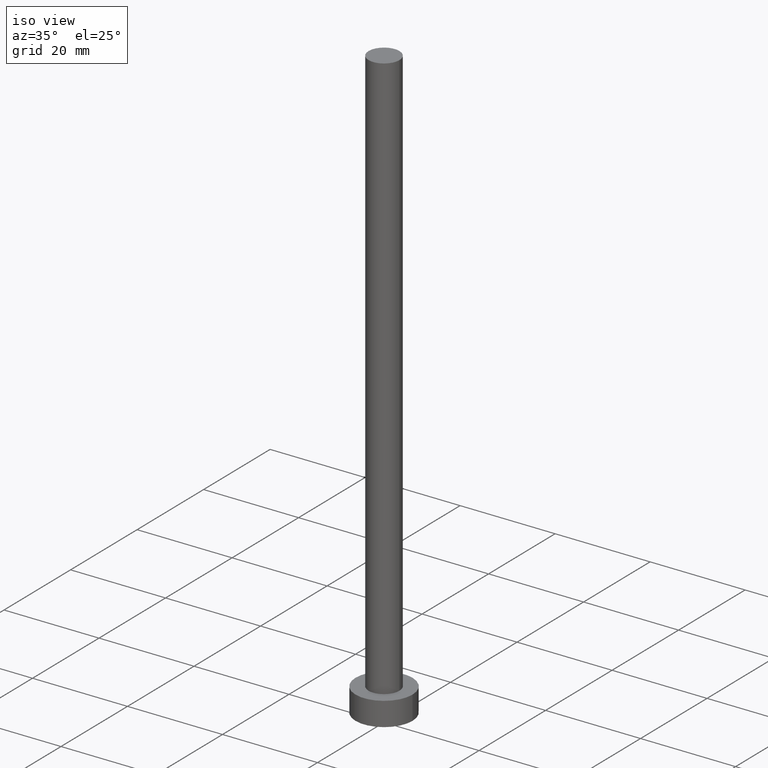
[diagram: clean part render]
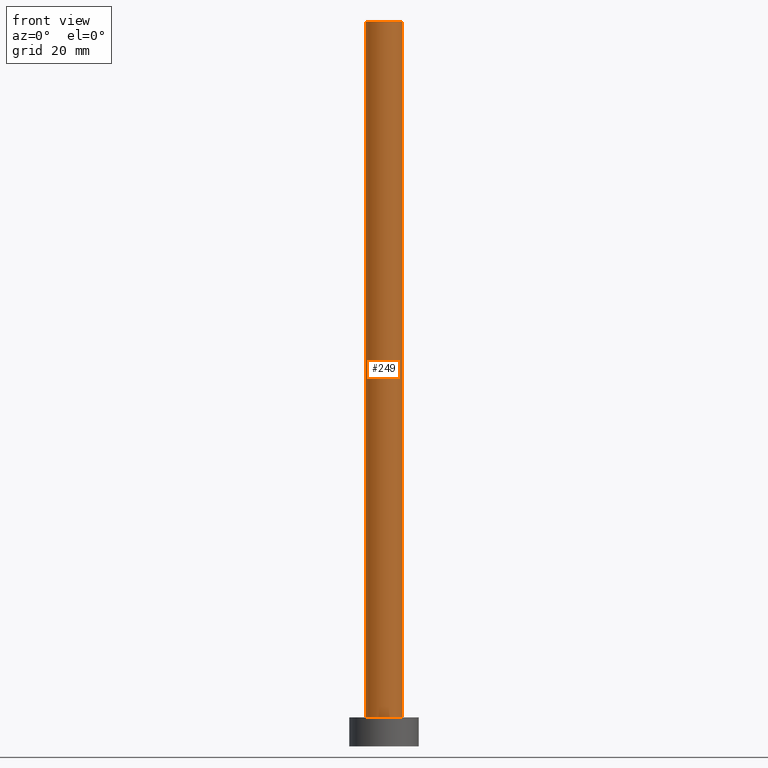
[diagram: tour spotlight — one face highlighted and labeled with its STEP entity id]
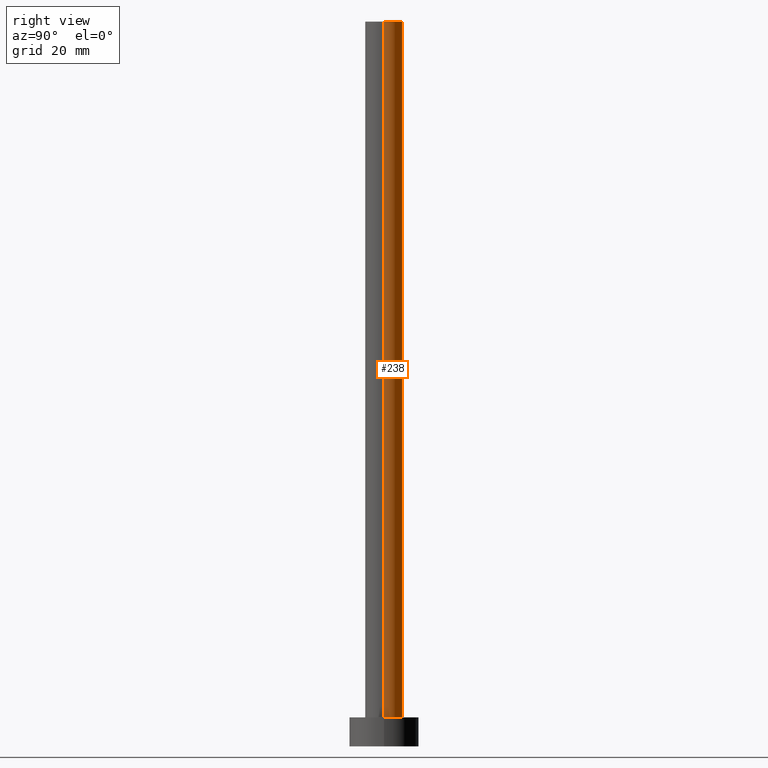
[diagram: tour spotlight — one face highlighted and labeled with its STEP entity id]
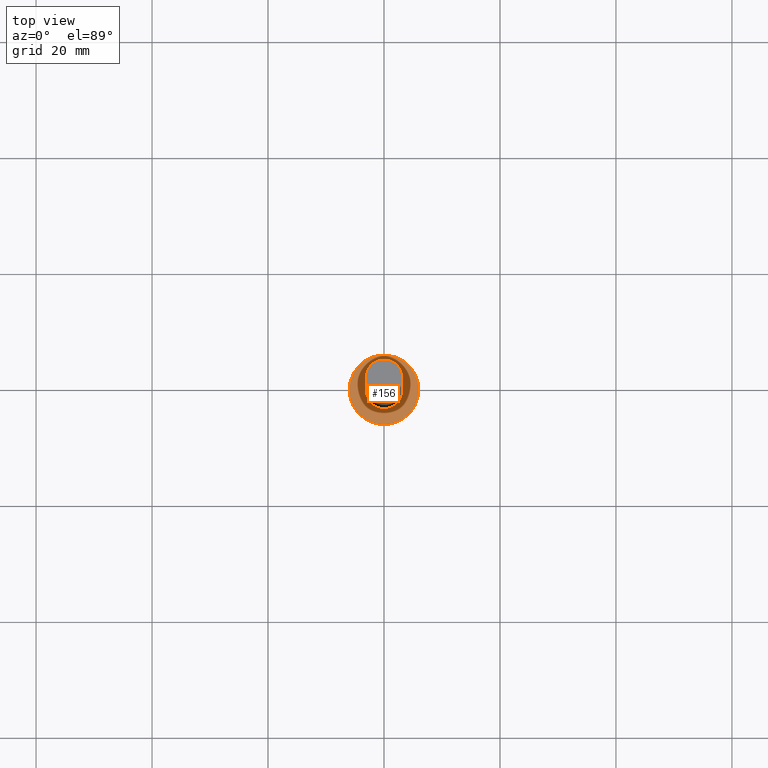
[diagram: tour spotlight — one face highlighted and labeled with its STEP entity id]
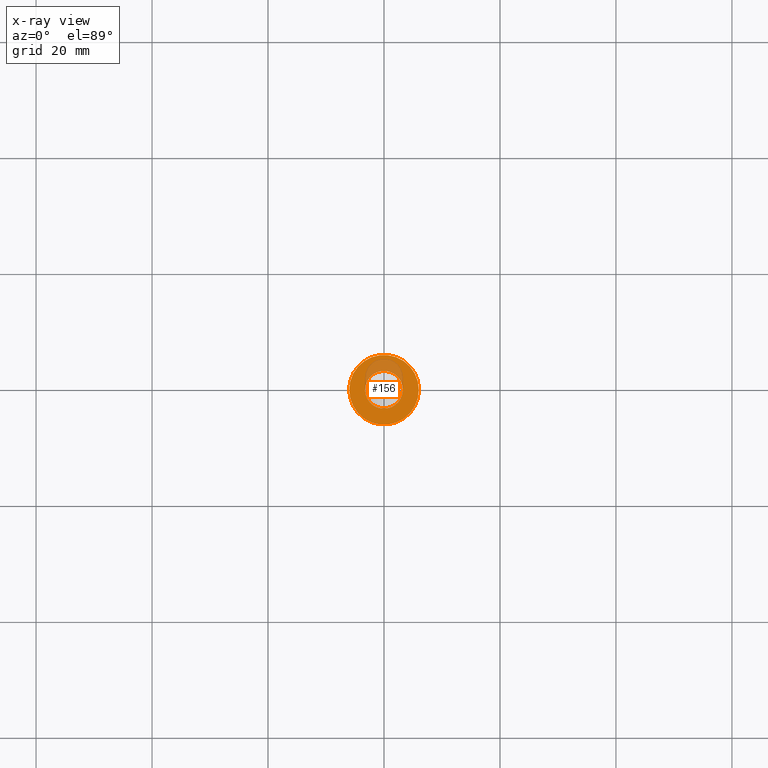
[diagram: x-ray of the same camera — body ghosted, this tour face saturated]
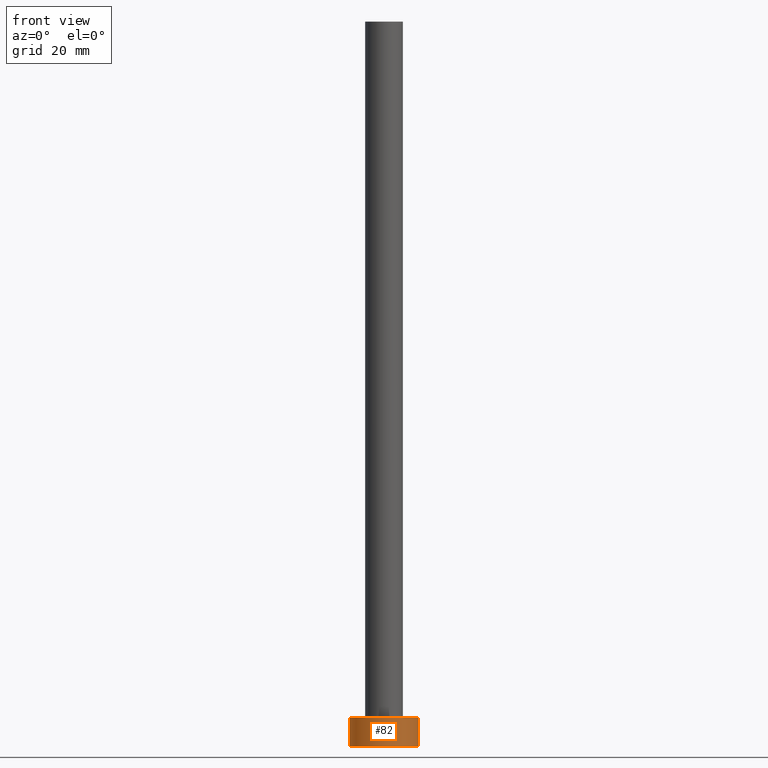
[diagram: tour spotlight — one face highlighted and labeled with its STEP entity id]
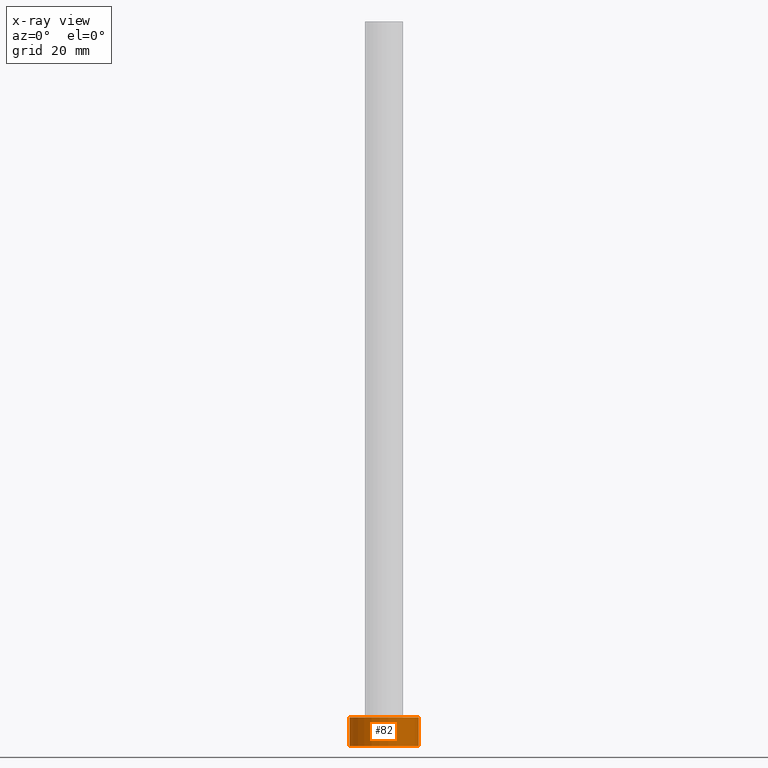
[diagram: x-ray of the same camera — body ghosted, this tour face saturated]
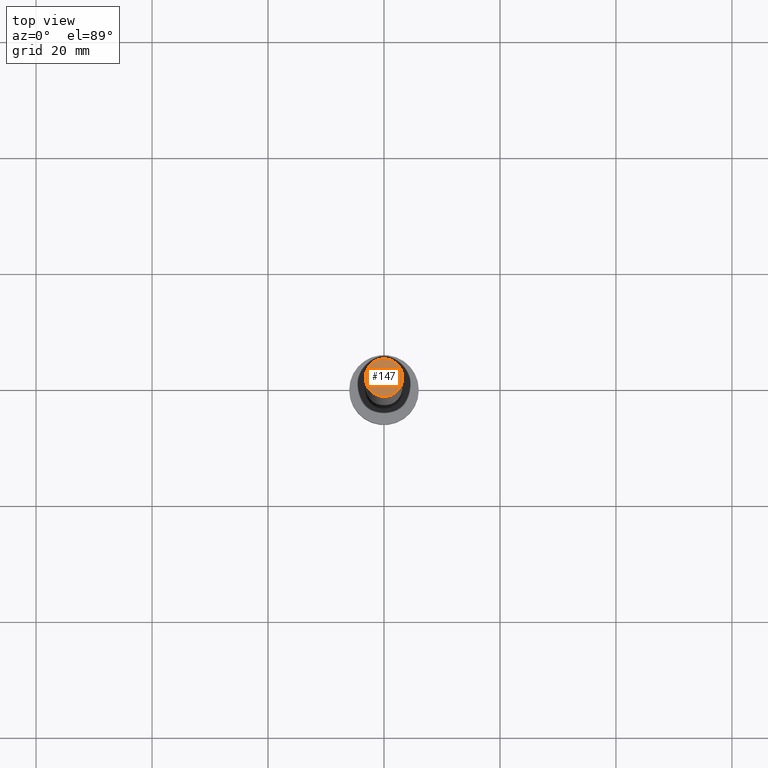
[diagram: tour spotlight — one face highlighted and labeled with its STEP entity id]
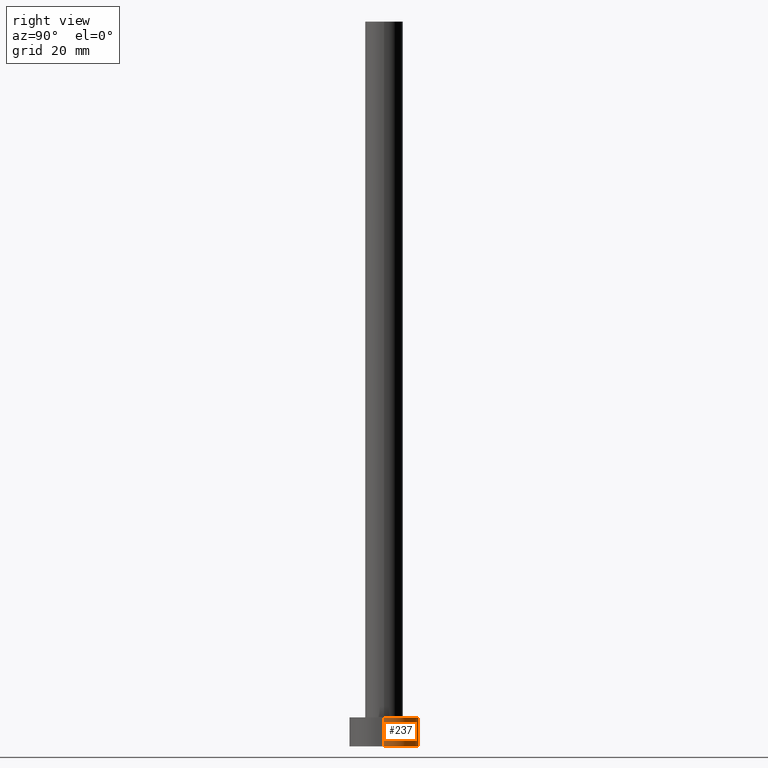
[diagram: tour spotlight — one face highlighted and labeled with its STEP entity id]
A machine part: a face-by-face anatomy tour. The part has 7 B-rep faces; the first image is the clean iso view, then the 6 largest visible faces are spotlighted one at a time (largest first), each with its STEP entity span.

Face 1 — front view, entity #249. In plain terms, the highlighted cylindrical surface (edge-blend (fillet) strip) has radius 3.25 mm, axis along (-0, -0, -1).
Definition (entity closure, byte-faithful):
#11 = CARTESIAN_POINT ( 'NONE',  ( 3.250000000000000444, 3.980102097228898231E-16, 125.0000000000000000 ) ) ;
#24 = ORIENTED_EDGE ( 'NONE', *, *, #112, .F. ) ;
#28 = ORIENTED_EDGE ( 'NONE', *, *, #226, .T. ) ;
#29 = DIRECTION ( 'NONE',  ( -0.000000000000000000, -0.000000000000000000, -1.000000000000000000 ) ) ;
#31 = EDGE_LOOP ( 'NONE', ( #123, #24, #241, #28 ) ) ;
#35 = DIRECTION ( 'NONE',  ( -0.000000000000000000, -0.000000000000000000, -1.000000000000000000 ) ) ;
#36 = DIRECTION ( 'NONE',  ( 1.000000000000000000, 0.000000000000000000, 0.000000000000000000 ) ) ;
#37 = DIRECTION ( 'NONE',  ( -1.000000000000000000, 0.000000000000000000, 0.000000000000000000 ) ) ;
#46 = AXIS2_PLACEMENT_3D ( 'NONE', #72, #154, #36 ) ;
#48 = VERTEX_POINT ( 'NONE', #180 ) ;
#61 = VERTEX_POINT ( 'NONE', #11 ) ;
#62 = EDGE_CURVE ( 'NONE', #61, #78, #162, .T. ) ;
#70 = CIRCLE ( 'NONE', #46, 3.250000000000000444 ) ;
#72 = CARTESIAN_POINT ( 'NONE',  ( 0.000000000000000000, 0.000000000000000000, 5.000000000000000000 ) ) ;
#78 = VERTEX_POINT ( 'NONE', #207 ) ;
#93 = DIRECTION ( 'NONE',  ( -0.000000000000000000, -0.000000000000000000, -1.000000000000000000 ) ) ;
#96 = CIRCLE ( 'NONE', #121, 3.250000000000000444 ) ;
#112 = EDGE_CURVE ( 'NONE', #182, #61, #96, .T. ) ;
#121 = AXIS2_PLACEMENT_3D ( 'NONE', #186, #184, #170 ) ;
#123 = ORIENTED_EDGE ( 'NONE', *, *, #62, .F. ) ;
#130 = LINE ( 'NONE', #209, #216 ) ;
#134 = FACE_OUTER_BOUND ( 'NONE', #31, .T. ) ;
#154 = DIRECTION ( 'NONE',  ( 0.000000000000000000, 0.000000000000000000, 1.000000000000000000 ) ) ;
#162 = LINE ( 'NONE', #202, #208 ) ;
#170 = DIRECTION ( 'NONE',  ( 1.000000000000000000, 0.000000000000000000, 0.000000000000000000 ) ) ;
#180 = CARTESIAN_POINT ( 'NONE',  ( -3.250000000000000444, 0.000000000000000000, 5.000000000000000000 ) ) ;
#182 = VERTEX_POINT ( 'NONE', #231 ) ;
#184 = DIRECTION ( 'NONE',  ( 0.000000000000000000, 0.000000000000000000, 1.000000000000000000 ) ) ;
#186 = CARTESIAN_POINT ( 'NONE',  ( 0.000000000000000000, 0.000000000000000000, 125.0000000000000000 ) ) ;
#190 = EDGE_CURVE ( 'NONE', #182, #48, #130, .T. ) ;
#193 = CYLINDRICAL_SURFACE ( 'NONE', #223, 3.250000000000000444 ) ;
#202 = CARTESIAN_POINT ( 'NONE',  ( 3.250000000000000444, 3.980102097228898231E-16, 125.0000000000000000 ) ) ;
#207 = CARTESIAN_POINT ( 'NONE',  ( 3.250000000000000444, 3.980102097228898231E-16, 5.000000000000000000 ) ) ;
#208 = VECTOR ( 'NONE', #29, 1000.000000000000000 ) ;
#209 = CARTESIAN_POINT ( 'NONE',  ( -3.250000000000000444, 0.000000000000000000, 125.0000000000000000 ) ) ;
#216 = VECTOR ( 'NONE', #35, 1000.000000000000000 ) ;
#223 = AXIS2_PLACEMENT_3D ( 'NONE', #254, #93, #37 ) ;
#226 = EDGE_CURVE ( 'NONE', #48, #78, #70, .T. ) ;
#231 = CARTESIAN_POINT ( 'NONE',  ( -3.250000000000000444, 0.000000000000000000, 125.0000000000000000 ) ) ;
#241 = ORIENTED_EDGE ( 'NONE', *, *, #190, .T. ) ;
#249 = ADVANCED_FACE ( 'NONE', ( #134 ), #193, .T. ) ;
#254 = CARTESIAN_POINT ( 'NONE',  ( 0.000000000000000000, 0.000000000000000000, 125.0000000000000000 ) ) ;

Face 2 — right view, entity #238. In plain terms, the highlighted cylindrical surface (edge-blend (fillet) strip) has radius 3.25 mm, axis along (-0, -0, -1).
Definition (entity closure, byte-faithful):
#10 = CIRCLE ( 'NONE', #173, 3.250000000000000444 ) ;
#11 = CARTESIAN_POINT ( 'NONE',  ( 3.250000000000000444, 3.980102097228898231E-16, 125.0000000000000000 ) ) ;
#29 = DIRECTION ( 'NONE',  ( -0.000000000000000000, -0.000000000000000000, -1.000000000000000000 ) ) ;
#35 = DIRECTION ( 'NONE',  ( -0.000000000000000000, -0.000000000000000000, -1.000000000000000000 ) ) ;
#39 = AXIS2_PLACEMENT_3D ( 'NONE', #115, #210, #255 ) ;
#45 = ORIENTED_EDGE ( 'NONE', *, *, #199, .F. ) ;
#48 = VERTEX_POINT ( 'NONE', #180 ) ;
#54 = FACE_OUTER_BOUND ( 'NONE', #203, .T. ) ;
#61 = VERTEX_POINT ( 'NONE', #11 ) ;
#62 = EDGE_CURVE ( 'NONE', #61, #78, #162, .T. ) ;
#68 = EDGE_CURVE ( 'NONE', #78, #48, #10, .T. ) ;
#77 = ORIENTED_EDGE ( 'NONE', *, *, #190, .F. ) ;
#78 = VERTEX_POINT ( 'NONE', #207 ) ;
#100 = ORIENTED_EDGE ( 'NONE', *, *, #68, .T. ) ;
#115 = CARTESIAN_POINT ( 'NONE',  ( 0.000000000000000000, 0.000000000000000000, 125.0000000000000000 ) ) ;
#116 = CARTESIAN_POINT ( 'NONE',  ( 0.000000000000000000, 0.000000000000000000, 125.0000000000000000 ) ) ;
#130 = LINE ( 'NONE', #209, #216 ) ;
#131 = CYLINDRICAL_SURFACE ( 'NONE', #218, 3.250000000000000444 ) ;
#151 = DIRECTION ( 'NONE',  ( 1.000000000000000000, 0.000000000000000000, 0.000000000000000000 ) ) ;
#152 = CIRCLE ( 'NONE', #39, 3.250000000000000444 ) ;
#155 = DIRECTION ( 'NONE',  ( -1.000000000000000000, 0.000000000000000000, 0.000000000000000000 ) ) ;
#162 = LINE ( 'NONE', #202, #208 ) ;
#167 = CARTESIAN_POINT ( 'NONE',  ( 0.000000000000000000, 0.000000000000000000, 5.000000000000000000 ) ) ;
#173 = AXIS2_PLACEMENT_3D ( 'NONE', #167, #187, #151 ) ;
#180 = CARTESIAN_POINT ( 'NONE',  ( -3.250000000000000444, 0.000000000000000000, 5.000000000000000000 ) ) ;
#182 = VERTEX_POINT ( 'NONE', #231 ) ;
#187 = DIRECTION ( 'NONE',  ( 0.000000000000000000, 0.000000000000000000, 1.000000000000000000 ) ) ;
#190 = EDGE_CURVE ( 'NONE', #182, #48, #130, .T. ) ;
#199 = EDGE_CURVE ( 'NONE', #61, #182, #152, .T. ) ;
#200 = ORIENTED_EDGE ( 'NONE', *, *, #62, .T. ) ;
#202 = CARTESIAN_POINT ( 'NONE',  ( 3.250000000000000444, 3.980102097228898231E-16, 125.0000000000000000 ) ) ;
#203 = EDGE_LOOP ( 'NONE', ( #45, #200, #100, #77 ) ) ;
#207 = CARTESIAN_POINT ( 'NONE',  ( 3.250000000000000444, 3.980102097228898231E-16, 5.000000000000000000 ) ) ;
#208 = VECTOR ( 'NONE', #29, 1000.000000000000000 ) ;
#209 = CARTESIAN_POINT ( 'NONE',  ( -3.250000000000000444, 0.000000000000000000, 125.0000000000000000 ) ) ;
#210 = DIRECTION ( 'NONE',  ( 0.000000000000000000, 0.000000000000000000, 1.000000000000000000 ) ) ;
#216 = VECTOR ( 'NONE', #35, 1000.000000000000000 ) ;
#218 = AXIS2_PLACEMENT_3D ( 'NONE', #116, #234, #155 ) ;
#231 = CARTESIAN_POINT ( 'NONE',  ( -3.250000000000000444, 0.000000000000000000, 125.0000000000000000 ) ) ;
#234 = DIRECTION ( 'NONE',  ( -0.000000000000000000, -0.000000000000000000, -1.000000000000000000 ) ) ;
#238 = ADVANCED_FACE ( 'NONE', ( #54 ), #131, .T. ) ;
#255 = DIRECTION ( 'NONE',  ( 1.000000000000000000, 0.000000000000000000, 0.000000000000000000 ) ) ;

Face 3 — top view, entity #156. An x-ray twin of the same camera follows (body ghosted, this face saturated) — the face is partly hidden behind the body. In plain terms, the highlighted planar face has unit normal (0, 0, 1).
Definition (entity closure, byte-faithful):
#8 = DIRECTION ( 'NONE',  ( 1.000000000000000000, 0.000000000000000000, 0.000000000000000000 ) ) ;
#10 = CIRCLE ( 'NONE', #173, 3.250000000000000444 ) ;
#12 = ORIENTED_EDGE ( 'NONE', *, *, #20, .T. ) ;
#20 = EDGE_CURVE ( 'NONE', #224, #64, #139, .T. ) ;
#36 = DIRECTION ( 'NONE',  ( 1.000000000000000000, 0.000000000000000000, 0.000000000000000000 ) ) ;
#46 = AXIS2_PLACEMENT_3D ( 'NONE', #72, #154, #36 ) ;
#48 = VERTEX_POINT ( 'NONE', #180 ) ;
#52 = DIRECTION ( 'NONE',  ( 0.000000000000000000, 0.000000000000000000, 1.000000000000000000 ) ) ;
#64 = VERTEX_POINT ( 'NONE', #88 ) ;
#66 = CIRCLE ( 'NONE', #245, 6.000000000000000888 ) ;
#68 = EDGE_CURVE ( 'NONE', #78, #48, #10, .T. ) ;
#69 = AXIS2_PLACEMENT_3D ( 'NONE', #150, #52, #128 ) ;
#70 = CIRCLE ( 'NONE', #46, 3.250000000000000444 ) ;
#72 = CARTESIAN_POINT ( 'NONE',  ( 0.000000000000000000, 0.000000000000000000, 5.000000000000000000 ) ) ;
#78 = VERTEX_POINT ( 'NONE', #207 ) ;
#83 = ORIENTED_EDGE ( 'NONE', *, *, #68, .F. ) ;
#88 = CARTESIAN_POINT ( 'NONE',  ( -6.000000000000000888, 0.000000000000000000, 5.000000000000000000 ) ) ;
#106 = ORIENTED_EDGE ( 'NONE', *, *, #196, .T. ) ;
#108 = CARTESIAN_POINT ( 'NONE',  ( 0.000000000000000000, 0.000000000000000000, 5.000000000000000000 ) ) ;
#127 = DIRECTION ( 'NONE',  ( 1.000000000000000000, 0.000000000000000000, 0.000000000000000000 ) ) ;
#128 = DIRECTION ( 'NONE',  ( 1.000000000000000000, 0.000000000000000000, -0.000000000000000000 ) ) ;
#137 = EDGE_LOOP ( 'NONE', ( #163, #83 ) ) ;
#139 = CIRCLE ( 'NONE', #194, 6.000000000000000888 ) ;
#149 = DIRECTION ( 'NONE',  ( 0.000000000000000000, 0.000000000000000000, 1.000000000000000000 ) ) ;
#150 = CARTESIAN_POINT ( 'NONE',  ( 0.000000000000000000, 0.000000000000000000, 5.000000000000000000 ) ) ;
#151 = DIRECTION ( 'NONE',  ( 1.000000000000000000, 0.000000000000000000, 0.000000000000000000 ) ) ;
#154 = DIRECTION ( 'NONE',  ( 0.000000000000000000, 0.000000000000000000, 1.000000000000000000 ) ) ;
#156 = ADVANCED_FACE ( 'NONE', ( #247, #230 ), #252, .T. ) ;
#163 = ORIENTED_EDGE ( 'NONE', *, *, #226, .F. ) ;
#167 = CARTESIAN_POINT ( 'NONE',  ( 0.000000000000000000, 0.000000000000000000, 5.000000000000000000 ) ) ;
#173 = AXIS2_PLACEMENT_3D ( 'NONE', #167, #187, #151 ) ;
#180 = CARTESIAN_POINT ( 'NONE',  ( -3.250000000000000444, 0.000000000000000000, 5.000000000000000000 ) ) ;
#187 = DIRECTION ( 'NONE',  ( 0.000000000000000000, 0.000000000000000000, 1.000000000000000000 ) ) ;
#191 = CARTESIAN_POINT ( 'NONE',  ( 6.000000000000000888, 7.347880794884120722E-16, 5.000000000000000000 ) ) ;
#194 = AXIS2_PLACEMENT_3D ( 'NONE', #220, #227, #8 ) ;
#196 = EDGE_CURVE ( 'NONE', #64, #224, #66, .T. ) ;
#207 = CARTESIAN_POINT ( 'NONE',  ( 3.250000000000000444, 3.980102097228898231E-16, 5.000000000000000000 ) ) ;
#220 = CARTESIAN_POINT ( 'NONE',  ( 0.000000000000000000, 0.000000000000000000, 5.000000000000000000 ) ) ;
#222 = EDGE_LOOP ( 'NONE', ( #106, #12 ) ) ;
#224 = VERTEX_POINT ( 'NONE', #191 ) ;
#226 = EDGE_CURVE ( 'NONE', #48, #78, #70, .T. ) ;
#227 = DIRECTION ( 'NONE',  ( 0.000000000000000000, 0.000000000000000000, 1.000000000000000000 ) ) ;
#230 = FACE_OUTER_BOUND ( 'NONE', #222, .T. ) ;
#245 = AXIS2_PLACEMENT_3D ( 'NONE', #108, #149, #127 ) ;
#247 = FACE_BOUND ( 'NONE', #137, .T. ) ;
#252 = PLANE ( 'NONE',  #69 ) ;

Face 4 — front view, entity #82. An x-ray twin of the same camera follows (body ghosted, this face saturated) — the face is partly hidden behind the body. In plain terms, the highlighted cylindrical surface (edge-blend (fillet) strip) has radius 6 mm, axis along (-0, -0, -1).
Definition (entity closure, byte-faithful):
#2 = VECTOR ( 'NONE', #177, 1000.000000000000000 ) ;
#3 = EDGE_CURVE ( 'NONE', #64, #122, #103, .T. ) ;
#18 = DIRECTION ( 'NONE',  ( -1.000000000000000000, 0.000000000000000000, 0.000000000000000000 ) ) ;
#32 = DIRECTION ( 'NONE',  ( 0.000000000000000000, 0.000000000000000000, 1.000000000000000000 ) ) ;
#59 = CARTESIAN_POINT ( 'NONE',  ( -6.000000000000000888, 0.000000000000000000, 5.000000000000000000 ) ) ;
#63 = EDGE_LOOP ( 'NONE', ( #225, #239, #198, #85 ) ) ;
#64 = VERTEX_POINT ( 'NONE', #88 ) ;
#65 = DIRECTION ( 'NONE',  ( -0.000000000000000000, -0.000000000000000000, -1.000000000000000000 ) ) ;
#66 = CIRCLE ( 'NONE', #245, 6.000000000000000888 ) ;
#71 = CARTESIAN_POINT ( 'NONE',  ( 6.000000000000000888, 7.347880794884120722E-16, 0.000000000000000000 ) ) ;
#73 = AXIS2_PLACEMENT_3D ( 'NONE', #113, #32, #92 ) ;
#82 = ADVANCED_FACE ( 'NONE', ( #205 ), #107, .T. ) ;
#85 = ORIENTED_EDGE ( 'NONE', *, *, #192, .T. ) ;
#86 = DIRECTION ( 'NONE',  ( -0.000000000000000000, -0.000000000000000000, -1.000000000000000000 ) ) ;
#88 = CARTESIAN_POINT ( 'NONE',  ( -6.000000000000000888, 0.000000000000000000, 5.000000000000000000 ) ) ;
#90 = CARTESIAN_POINT ( 'NONE',  ( -6.000000000000000888, 0.000000000000000000, 0.000000000000000000 ) ) ;
#92 = DIRECTION ( 'NONE',  ( 1.000000000000000000, 0.000000000000000000, 0.000000000000000000 ) ) ;
#103 = LINE ( 'NONE', #59, #2 ) ;
#107 = CYLINDRICAL_SURFACE ( 'NONE', #135, 6.000000000000000888 ) ;
#108 = CARTESIAN_POINT ( 'NONE',  ( 0.000000000000000000, 0.000000000000000000, 5.000000000000000000 ) ) ;
#113 = CARTESIAN_POINT ( 'NONE',  ( 0.000000000000000000, 0.000000000000000000, 0.000000000000000000 ) ) ;
#122 = VERTEX_POINT ( 'NONE', #90 ) ;
#127 = DIRECTION ( 'NONE',  ( 1.000000000000000000, 0.000000000000000000, 0.000000000000000000 ) ) ;
#135 = AXIS2_PLACEMENT_3D ( 'NONE', #171, #65, #18 ) ;
#149 = DIRECTION ( 'NONE',  ( 0.000000000000000000, 0.000000000000000000, 1.000000000000000000 ) ) ;
#153 = EDGE_CURVE ( 'NONE', #224, #159, #248, .T. ) ;
#159 = VERTEX_POINT ( 'NONE', #71 ) ;
#164 = VECTOR ( 'NONE', #86, 1000.000000000000000 ) ;
#171 = CARTESIAN_POINT ( 'NONE',  ( 0.000000000000000000, 0.000000000000000000, 5.000000000000000000 ) ) ;
#172 = CARTESIAN_POINT ( 'NONE',  ( 6.000000000000000888, 7.347880794884120722E-16, 5.000000000000000000 ) ) ;
#177 = DIRECTION ( 'NONE',  ( -0.000000000000000000, -0.000000000000000000, -1.000000000000000000 ) ) ;
#183 = CIRCLE ( 'NONE', #73, 6.000000000000000888 ) ;
#191 = CARTESIAN_POINT ( 'NONE',  ( 6.000000000000000888, 7.347880794884120722E-16, 5.000000000000000000 ) ) ;
#192 = EDGE_CURVE ( 'NONE', #122, #159, #183, .T. ) ;
#196 = EDGE_CURVE ( 'NONE', #64, #224, #66, .T. ) ;
#198 = ORIENTED_EDGE ( 'NONE', *, *, #3, .T. ) ;
#205 = FACE_OUTER_BOUND ( 'NONE', #63, .T. ) ;
#224 = VERTEX_POINT ( 'NONE', #191 ) ;
#225 = ORIENTED_EDGE ( 'NONE', *, *, #153, .F. ) ;
#239 = ORIENTED_EDGE ( 'NONE', *, *, #196, .F. ) ;
#245 = AXIS2_PLACEMENT_3D ( 'NONE', #108, #149, #127 ) ;
#248 = LINE ( 'NONE', #172, #164 ) ;

Face 5 — top view, entity #147. In plain terms, the highlighted planar face has unit normal (0, 0, 1).
Definition (entity closure, byte-faithful):
#5 = EDGE_LOOP ( 'NONE', ( #145, #125 ) ) ;
#11 = CARTESIAN_POINT ( 'NONE',  ( 3.250000000000000444, 3.980102097228898231E-16, 125.0000000000000000 ) ) ;
#14 = FACE_OUTER_BOUND ( 'NONE', #5, .T. ) ;
#39 = AXIS2_PLACEMENT_3D ( 'NONE', #115, #210, #255 ) ;
#51 = CARTESIAN_POINT ( 'NONE',  ( 0.000000000000000000, 0.000000000000000000, 125.0000000000000000 ) ) ;
#61 = VERTEX_POINT ( 'NONE', #11 ) ;
#67 = PLANE ( 'NONE',  #244 ) ;
#96 = CIRCLE ( 'NONE', #121, 3.250000000000000444 ) ;
#112 = EDGE_CURVE ( 'NONE', #182, #61, #96, .T. ) ;
#115 = CARTESIAN_POINT ( 'NONE',  ( 0.000000000000000000, 0.000000000000000000, 125.0000000000000000 ) ) ;
#121 = AXIS2_PLACEMENT_3D ( 'NONE', #186, #184, #170 ) ;
#125 = ORIENTED_EDGE ( 'NONE', *, *, #199, .T. ) ;
#145 = ORIENTED_EDGE ( 'NONE', *, *, #112, .T. ) ;
#147 = ADVANCED_FACE ( 'NONE', ( #14 ), #67, .T. ) ;
#152 = CIRCLE ( 'NONE', #39, 3.250000000000000444 ) ;
#170 = DIRECTION ( 'NONE',  ( 1.000000000000000000, 0.000000000000000000, 0.000000000000000000 ) ) ;
#182 = VERTEX_POINT ( 'NONE', #231 ) ;
#184 = DIRECTION ( 'NONE',  ( 0.000000000000000000, 0.000000000000000000, 1.000000000000000000 ) ) ;
#186 = CARTESIAN_POINT ( 'NONE',  ( 0.000000000000000000, 0.000000000000000000, 125.0000000000000000 ) ) ;
#199 = EDGE_CURVE ( 'NONE', #61, #182, #152, .T. ) ;
#204 = DIRECTION ( 'NONE',  ( 0.000000000000000000, 0.000000000000000000, 1.000000000000000000 ) ) ;
#206 = DIRECTION ( 'NONE',  ( 1.000000000000000000, 0.000000000000000000, -0.000000000000000000 ) ) ;
#210 = DIRECTION ( 'NONE',  ( 0.000000000000000000, 0.000000000000000000, 1.000000000000000000 ) ) ;
#231 = CARTESIAN_POINT ( 'NONE',  ( -3.250000000000000444, 0.000000000000000000, 125.0000000000000000 ) ) ;
#244 = AXIS2_PLACEMENT_3D ( 'NONE', #51, #204, #206 ) ;
#255 = DIRECTION ( 'NONE',  ( 1.000000000000000000, 0.000000000000000000, 0.000000000000000000 ) ) ;

Face 6 — right view, entity #237. In plain terms, the highlighted cylindrical surface (edge-blend (fillet) strip) has radius 6 mm, axis along (-0, -0, -1).
Definition (entity closure, byte-faithful):
#2 = VECTOR ( 'NONE', #177, 1000.000000000000000 ) ;
#3 = EDGE_CURVE ( 'NONE', #64, #122, #103, .T. ) ;
#8 = DIRECTION ( 'NONE',  ( 1.000000000000000000, 0.000000000000000000, 0.000000000000000000 ) ) ;
#13 = EDGE_LOOP ( 'NONE', ( #27, #140, #101, #165 ) ) ;
#20 = EDGE_CURVE ( 'NONE', #224, #64, #139, .T. ) ;
#23 = CIRCLE ( 'NONE', #144, 6.000000000000000888 ) ;
#27 = ORIENTED_EDGE ( 'NONE', *, *, #20, .F. ) ;
#42 = EDGE_CURVE ( 'NONE', #159, #122, #23, .T. ) ;
#44 = DIRECTION ( 'NONE',  ( 0.000000000000000000, 0.000000000000000000, 1.000000000000000000 ) ) ;
#59 = CARTESIAN_POINT ( 'NONE',  ( -6.000000000000000888, 0.000000000000000000, 5.000000000000000000 ) ) ;
#64 = VERTEX_POINT ( 'NONE', #88 ) ;
#71 = CARTESIAN_POINT ( 'NONE',  ( 6.000000000000000888, 7.347880794884120722E-16, 0.000000000000000000 ) ) ;
#74 = CYLINDRICAL_SURFACE ( 'NONE', #105, 6.000000000000000888 ) ;
#86 = DIRECTION ( 'NONE',  ( -0.000000000000000000, -0.000000000000000000, -1.000000000000000000 ) ) ;
#88 = CARTESIAN_POINT ( 'NONE',  ( -6.000000000000000888, 0.000000000000000000, 5.000000000000000000 ) ) ;
#90 = CARTESIAN_POINT ( 'NONE',  ( -6.000000000000000888, 0.000000000000000000, 0.000000000000000000 ) ) ;
#94 = DIRECTION ( 'NONE',  ( -1.000000000000000000, 0.000000000000000000, 0.000000000000000000 ) ) ;
#101 = ORIENTED_EDGE ( 'NONE', *, *, #42, .T. ) ;
#103 = LINE ( 'NONE', #59, #2 ) ;
#105 = AXIS2_PLACEMENT_3D ( 'NONE', #215, #132, #94 ) ;
#122 = VERTEX_POINT ( 'NONE', #90 ) ;
#132 = DIRECTION ( 'NONE',  ( -0.000000000000000000, -0.000000000000000000, -1.000000000000000000 ) ) ;
#139 = CIRCLE ( 'NONE', #194, 6.000000000000000888 ) ;
#140 = ORIENTED_EDGE ( 'NONE', *, *, #153, .T. ) ;
#144 = AXIS2_PLACEMENT_3D ( 'NONE', #160, #44, #240 ) ;
#153 = EDGE_CURVE ( 'NONE', #224, #159, #248, .T. ) ;
#159 = VERTEX_POINT ( 'NONE', #71 ) ;
#160 = CARTESIAN_POINT ( 'NONE',  ( 0.000000000000000000, 0.000000000000000000, 0.000000000000000000 ) ) ;
#164 = VECTOR ( 'NONE', #86, 1000.000000000000000 ) ;
#165 = ORIENTED_EDGE ( 'NONE', *, *, #3, .F. ) ;
#172 = CARTESIAN_POINT ( 'NONE',  ( 6.000000000000000888, 7.347880794884120722E-16, 5.000000000000000000 ) ) ;
#177 = DIRECTION ( 'NONE',  ( -0.000000000000000000, -0.000000000000000000, -1.000000000000000000 ) ) ;
#191 = CARTESIAN_POINT ( 'NONE',  ( 6.000000000000000888, 7.347880794884120722E-16, 5.000000000000000000 ) ) ;
#194 = AXIS2_PLACEMENT_3D ( 'NONE', #220, #227, #8 ) ;
#215 = CARTESIAN_POINT ( 'NONE',  ( 0.000000000000000000, 0.000000000000000000, 5.000000000000000000 ) ) ;
#220 = CARTESIAN_POINT ( 'NONE',  ( 0.000000000000000000, 0.000000000000000000, 5.000000000000000000 ) ) ;
#224 = VERTEX_POINT ( 'NONE', #191 ) ;
#227 = DIRECTION ( 'NONE',  ( 0.000000000000000000, 0.000000000000000000, 1.000000000000000000 ) ) ;
#232 = FACE_OUTER_BOUND ( 'NONE', #13, .T. ) ;
#237 = ADVANCED_FACE ( 'NONE', ( #232 ), #74, .T. ) ;
#240 = DIRECTION ( 'NONE',  ( 1.000000000000000000, 0.000000000000000000, 0.000000000000000000 ) ) ;
#248 = LINE ( 'NONE', #172, #164 ) ;